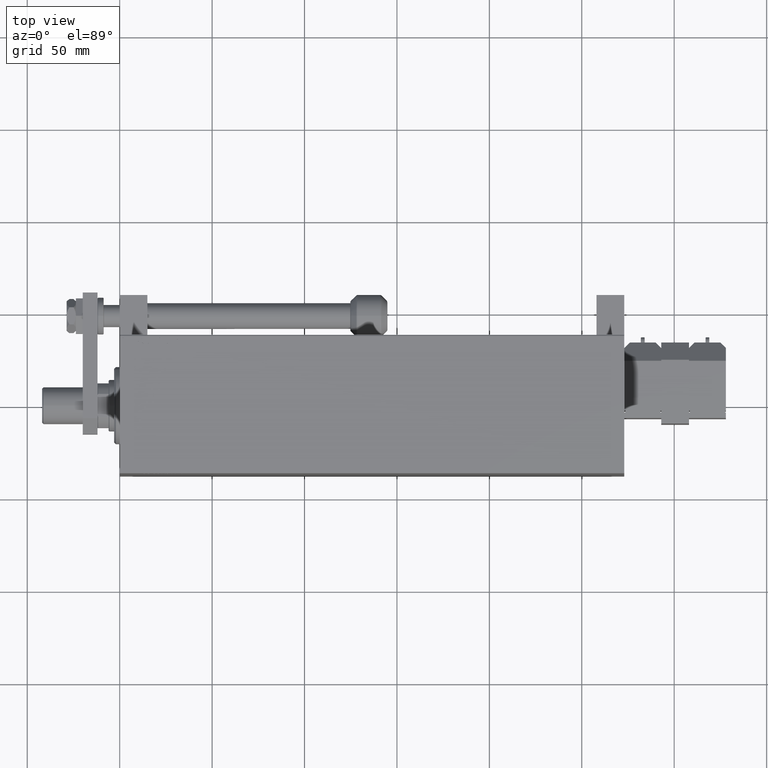
[diagram: clean part render]
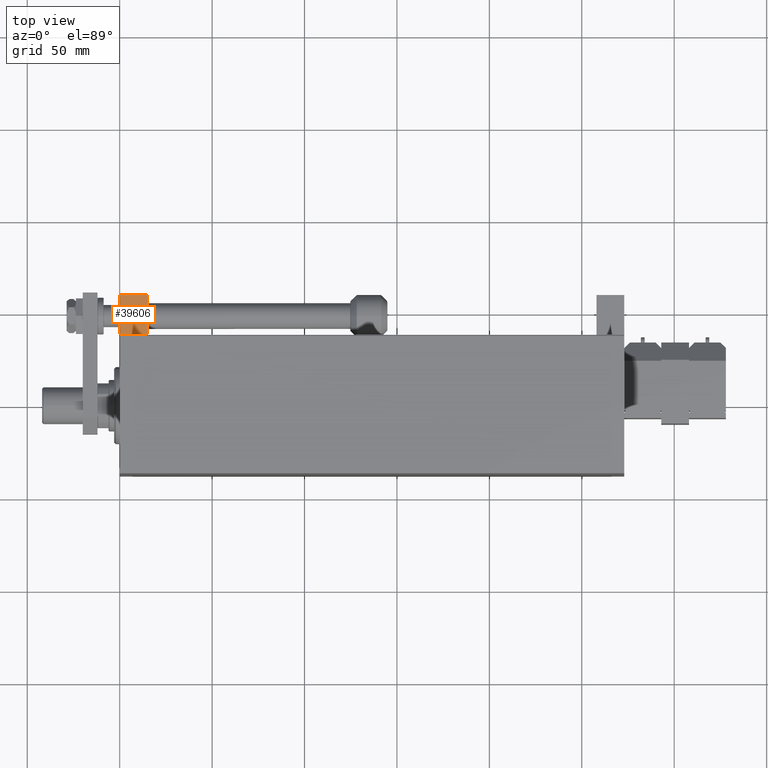
[diagram: same view with one face highlighted and labeled with its STEP entity id]
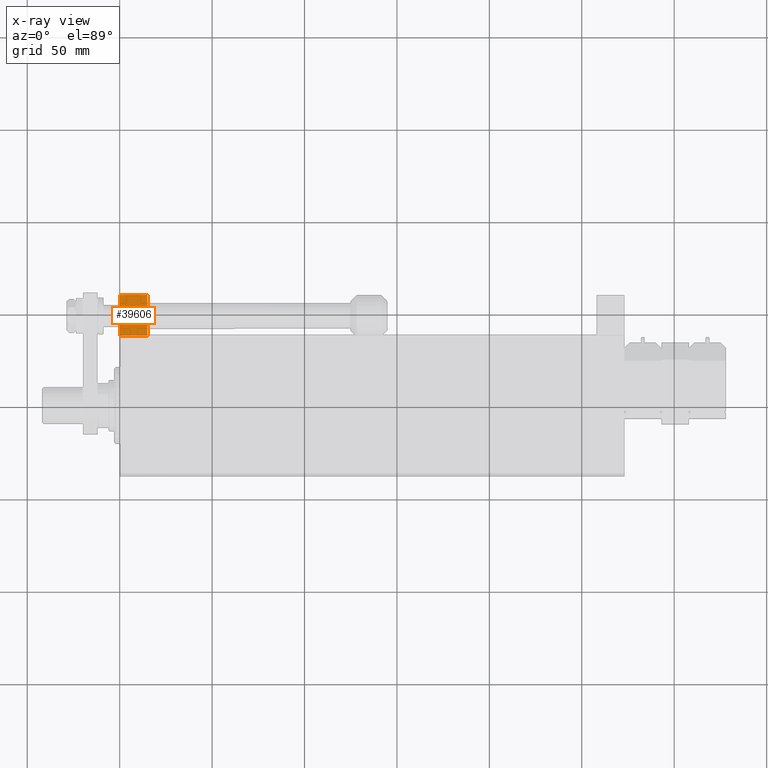
[diagram: x-ray of the same camera — body ghosted, the highlighted face saturated]
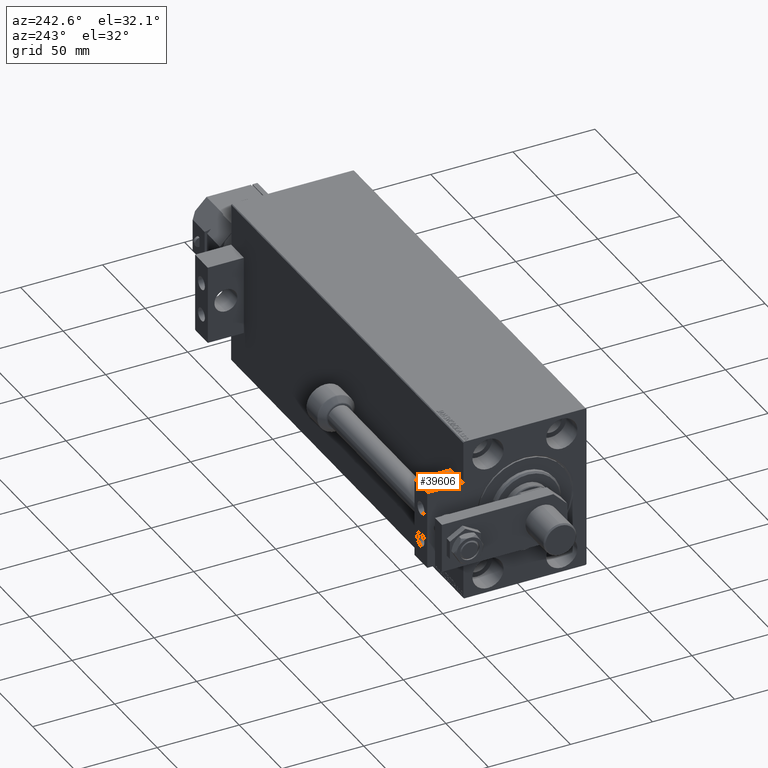
[diagram: same view with one face highlighted and labeled with its STEP entity id]
A machine part, top view. The second image highlights one B-rep face of the part: STEP entity #39606.
The next image is the same camera in x-ray: the body ghosted, the highlighted face saturated — about 0% of this face is hidden behind the body in this view.
A second angle (auxiliary view) of the same face is appended — the face is thin or edge-on in the first view.
In plain terms, the highlighted planar face has unit normal (0, 0, -1).
Its self-contained STEP definition (entity closure, byte-faithful):
#72 = ORIENTED_EDGE ( 'NONE', *, *, #24586, .F. ) ;
#388 = VECTOR ( 'NONE', #8045, 1000.000000000000000 ) ;
#1630 = VERTEX_POINT ( 'NONE', #35483 ) ;
#2930 = ORIENTED_EDGE ( 'NONE', *, *, #3433, .F. ) ;
#3433 = EDGE_CURVE ( 'NONE', #31967, #43716, #4521, .T. ) ;
#3817 = DIRECTION ( 'NONE',  ( -1.000000000000000000, -0.000000000000000000, -0.000000000000000000 ) ) ;
#4521 = LINE ( 'NONE', #26700, #388 ) ;
#6086 = CARTESIAN_POINT ( 'NONE',  ( 0.000000000000000000, 11.00000000000000355, 24.00000000000000711 ) ) ;
#7278 = CARTESIAN_POINT ( 'NONE',  ( 15.00000000000000000, 11.00000000000000355, 24.00000000000000711 ) ) ;
#7426 = VECTOR ( 'NONE', #10557, 1000.000000000000000 ) ;
#7790 = DIRECTION ( 'NONE',  ( 0.000000000000000000, 1.577021341797097314E-16, -1.000000000000000000 ) ) ;
#8045 = DIRECTION ( 'NONE',  ( 0.000000000000000000, -1.000000000000000000, -1.577021341797097314E-16 ) ) ;
#10557 = DIRECTION ( 'NONE',  ( -1.000000000000000000, -0.000000000000000000, -0.000000000000000000 ) ) ;
#10760 = ORIENTED_EDGE ( 'NONE', *, *, #29495, .T. ) ;
#10897 = VECTOR ( 'NONE', #3817, 1000.000000000000000 ) ;
#11988 = CARTESIAN_POINT ( 'NONE',  ( 0.000000000000000000, 11.00000000000000355, 24.00000000000000711 ) ) ;
#12077 = CARTESIAN_POINT ( 'NONE',  ( 15.00000000000000000, 11.00000000000000355, 24.00000000000000711 ) ) ;
#17295 = EDGE_LOOP ( 'NONE', ( #10760, #72, #2930, #32862 ) ) ;
#20931 = AXIS2_PLACEMENT_3D ( 'NONE', #27448, #7790, #42307 ) ;
#22678 = PLANE ( 'NONE',  #20931 ) ;
#22961 = CARTESIAN_POINT ( 'NONE',  ( 15.00000000000000000, -11.00000000000000000, 24.00000000000000355 ) ) ;
#24586 = EDGE_CURVE ( 'NONE', #43716, #1630, #26740, .T. ) ;
#26700 = CARTESIAN_POINT ( 'NONE',  ( 15.00000000000000000, 11.00000000000000355, 24.00000000000000711 ) ) ;
#26740 = LINE ( 'NONE', #22961, #10897 ) ;
#27448 = CARTESIAN_POINT ( 'NONE',  ( 15.00000000000000000, 11.00000000000000355, 24.00000000000000711 ) ) ;
#29495 = EDGE_CURVE ( 'NONE', #32172, #1630, #29756, .T. ) ;
#29756 = LINE ( 'NONE', #6086, #45676 ) ;
#30445 = LINE ( 'NONE', #7278, #7426 ) ;
#31967 = VERTEX_POINT ( 'NONE', #12077 ) ;
#32172 = VERTEX_POINT ( 'NONE', #11988 ) ;
#32862 = ORIENTED_EDGE ( 'NONE', *, *, #48252, .T. ) ;
#34274 = CARTESIAN_POINT ( 'NONE',  ( 15.00000000000000000, -11.00000000000000000, 24.00000000000000355 ) ) ;
#35483 = CARTESIAN_POINT ( 'NONE',  ( 0.000000000000000000, -11.00000000000000000, 24.00000000000000355 ) ) ;
#38270 = FACE_OUTER_BOUND ( 'NONE', #17295, .T. ) ;
#39606 = ADVANCED_FACE ( 'NONE', ( #38270 ), #22678, .F. ) ;
#42307 = DIRECTION ( 'NONE',  ( 0.000000000000000000, 1.000000000000000000, 1.577021341797097314E-16 ) ) ;
#43716 = VERTEX_POINT ( 'NONE', #34274 ) ;
#45134 = DIRECTION ( 'NONE',  ( 0.000000000000000000, -1.000000000000000000, -1.577021341797097314E-16 ) ) ;
#45676 = VECTOR ( 'NONE', #45134, 1000.000000000000000 ) ;
#48252 = EDGE_CURVE ( 'NONE', #31967, #32172, #30445, .T. ) ;